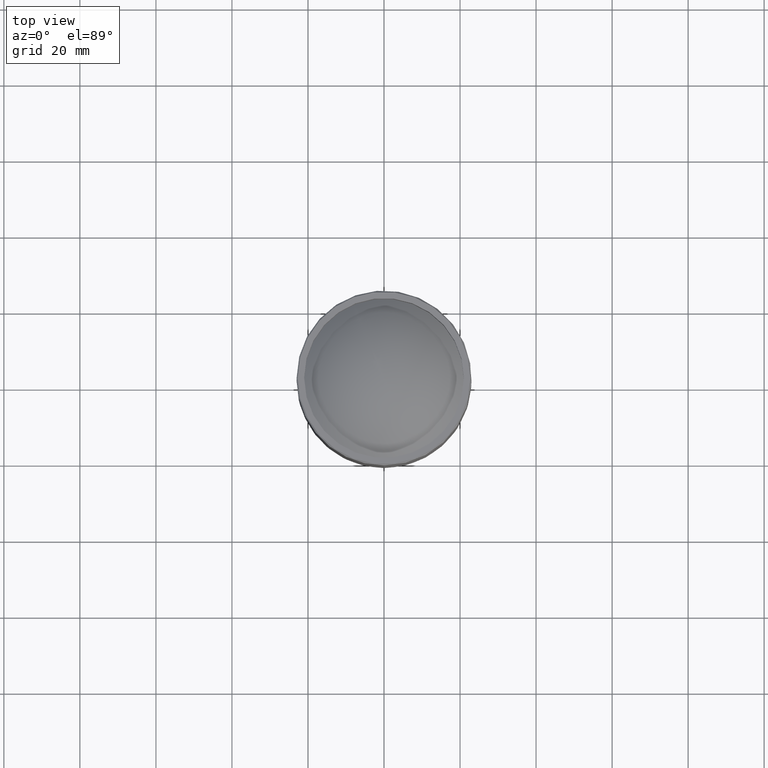
[diagram: clean part render]
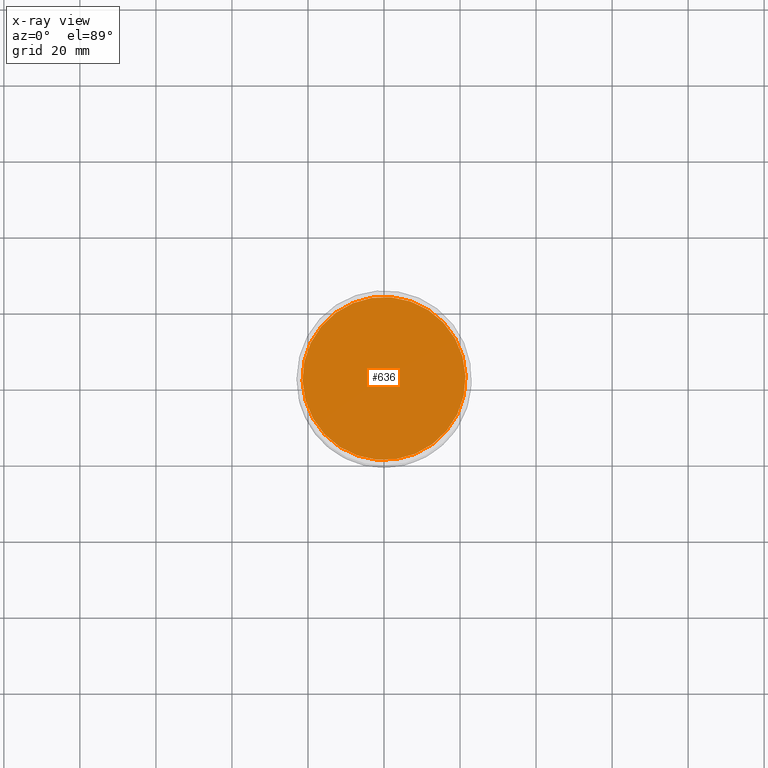
[diagram: x-ray — body ghosted, one internal face saturated and labeled with its STEP entity id]
A machine part, top view, then the same camera in x-ray: the body is ghosted and one INTERNAL B-rep face — a face not visible from any outside direction — is saturated and labeled: STEP entity #636.
In plain terms, the highlighted planar face has unit normal (-0, 0, 1).
Its self-contained STEP definition (entity closure, byte-faithful):
#77 = AXIS2_PLACEMENT_3D ( 'NONE', #131, #260, #389 ) ;
#115 = CARTESIAN_POINT ( 'NONE',  ( -2.775557561562891351E-14, -3.306816626080788524E-15, -742.0000000000001137 ) ) ;
#124 = AXIS2_PLACEMENT_3D ( 'NONE', #115, #509, #455 ) ;
#128 = PLANE ( 'NONE',  #77 ) ;
#131 = CARTESIAN_POINT ( 'NONE',  ( -7.311375404722653570, -63.84507486142587851, -742.0000000000001137 ) ) ;
#135 = VERTEX_POINT ( 'NONE', #277 ) ;
#195 = FACE_OUTER_BOUND ( 'NONE', #429, .T. ) ;
#260 = DIRECTION ( 'NONE',  ( -1.848892746611746419E-32, 1.318609258053556101E-16, 1.000000000000000000 ) ) ;
#277 = CARTESIAN_POINT ( 'NONE',  ( 8.217209483082285715, -19.81591518845252864, -742.0000000000001137 ) ) ;
#389 = DIRECTION ( 'NONE',  ( 0.3830490080632378835, -0.9237280213470681067, 1.218036320871736945E-16 ) ) ;
#402 = CIRCLE ( 'NONE', #124, 21.45211006975307555 ) ;
#429 = EDGE_LOOP ( 'NONE', ( #672 ) ) ;
#455 = DIRECTION ( 'NONE',  ( 0.3830490080632379390, -0.9237280213470682178, 0.000000000000000000 ) ) ;
#509 = DIRECTION ( 'NONE',  ( -1.232595164407830946E-32, -1.318609258053555361E-16, -1.000000000000000000 ) ) ;
#636 = ADVANCED_FACE ( 'NONE', ( #195 ), #128, .F. ) ;
#672 = ORIENTED_EDGE ( 'NONE', *, *, #756, .T. ) ;
#756 = EDGE_CURVE ( 'NONE', #135, #135, #402, .T. ) ;